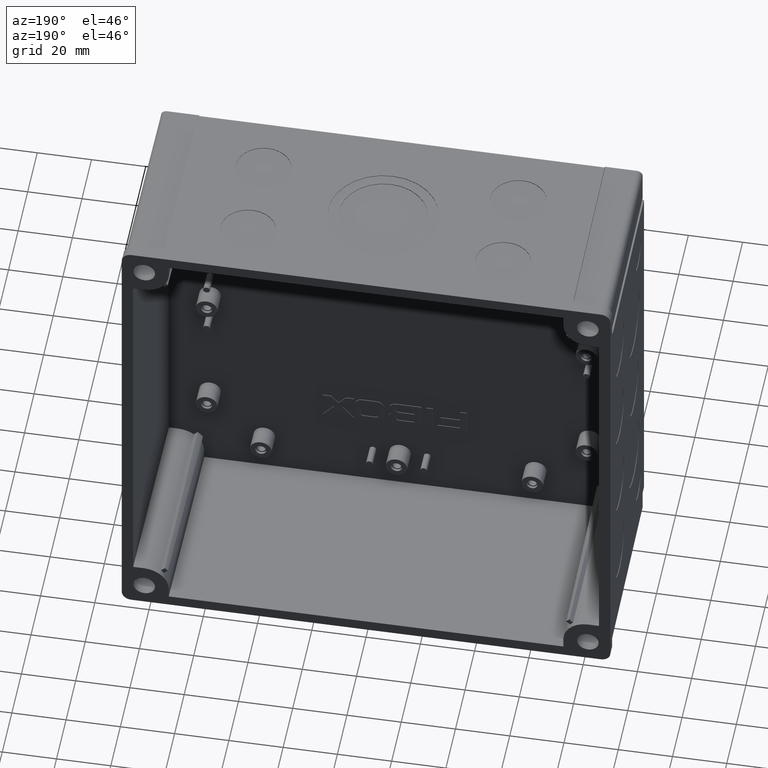
[diagram: clean part render]
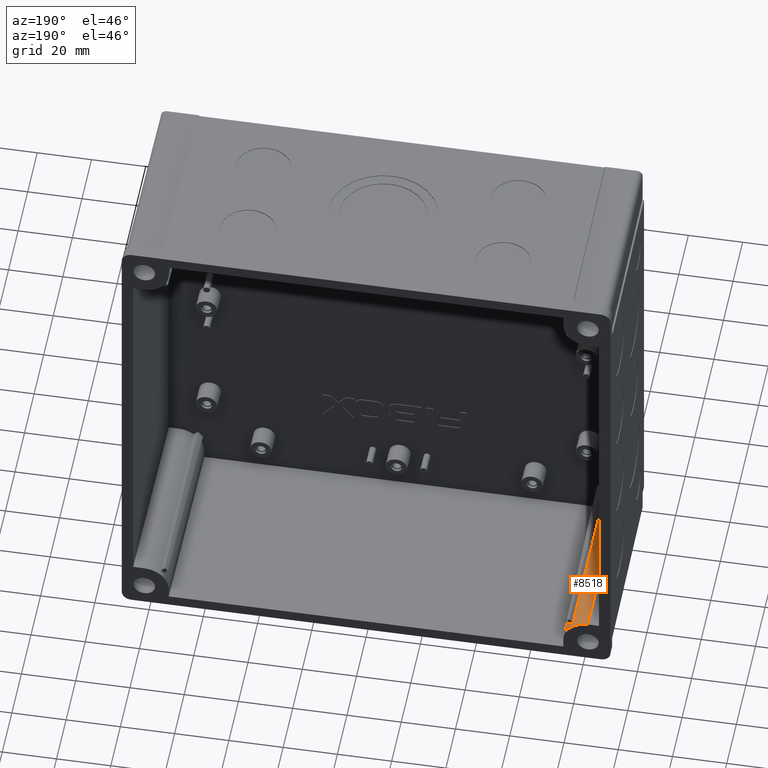
[diagram: same view with one face highlighted and labeled with its STEP entity id]
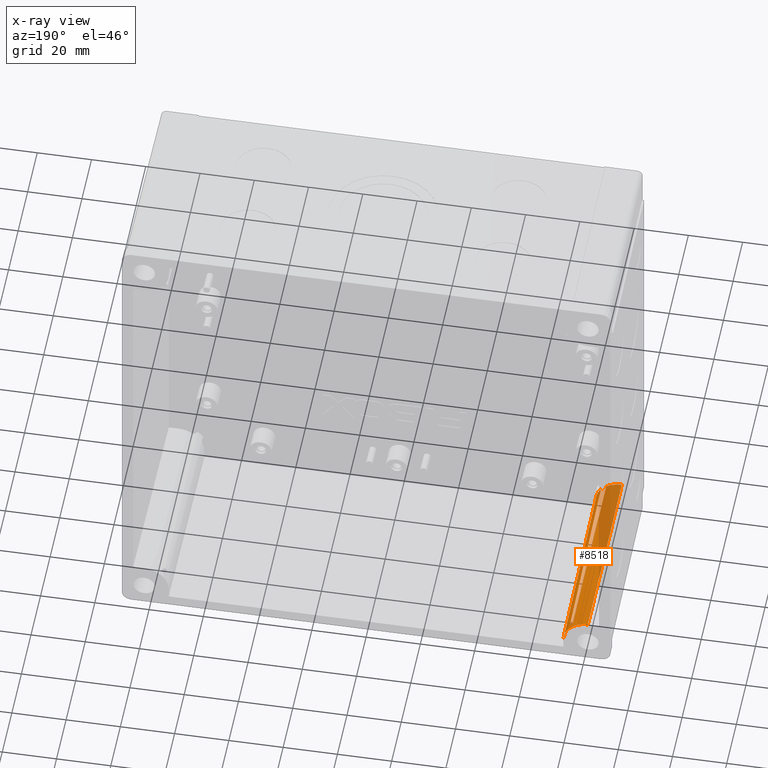
[diagram: x-ray of the same camera — body ghosted, the highlighted face saturated]
A machine part, auxiliary view. The second image highlights one B-rep face of the part: STEP entity #8518.
The next image is the same camera in x-ray: the body ghosted, the highlighted face saturated — about 37% of this face is hidden behind the body in this view.
In plain terms, the highlighted conical surface has half-angle 0.5 deg.
Its self-contained STEP definition (entity closure, byte-faithful):
#35 = DIRECTION ( 'NONE',  ( 0.0000000000000000000, -1.000000000000000000, 0.0000000000000000000 ) ) ;
#309 = EDGE_CURVE ( 'NONE', #4670, #8769, #11768, .T. ) ;
#422 = CARTESIAN_POINT ( 'NONE',  ( -75.96765493337525800, -7.959144256122452400, -74.76273838224349800 ) ) ;
#725 = CIRCLE ( 'NONE', #7247, 9.619607613143884400 ) ;
#773 = ORIENTED_EDGE ( 'NONE', *, *, #309, .F. ) ;
#845 = DIRECTION ( 'NONE',  ( 0.0000000000000000000, 0.0000000000000000000, -1.000000000000000000 ) ) ;
#854 = CARTESIAN_POINT ( 'NONE',  ( -81.75000000000000000, -71.00000000000000000, -72.13039238685610100 ) ) ;
#976 = ORIENTED_EDGE ( 'NONE', *, *, #3024, .T. ) ;
#1297 = CARTESIAN_POINT ( 'NONE',  ( -75.99767133221844500, -53.95912658430225400, -74.22503887899669900 ) ) ;
#1373 = CARTESIAN_POINT ( 'NONE',  ( -75.96452522096467400, -2.000000000000000000, -74.83315437106628600 ) ) ;
#1564 = DIRECTION ( 'NONE',  ( 1.345611199375486900E-017, 0.9999619230641713100, -0.008726535498373953800 ) ) ;
#1680 = FACE_OUTER_BOUND ( 'NONE', #12384, .T. ) ;
#1949 = AXIS2_PLACEMENT_3D ( 'NONE', #3675, #6586, #845 ) ;
#2544 = CARTESIAN_POINT ( 'NONE',  ( -75.96452522096467400, -2.000000000000000000, -74.83315437106628600 ) ) ;
#2636 = VECTOR ( 'NONE', #5050, 1000.000000000000000 ) ;
#3024 = EDGE_CURVE ( 'NONE', #4876, #9386, #5178, .T. ) ;
#3298 = AXIS2_PLACEMENT_3D ( 'NONE', #5649, #35, #8703 ) ;
#3304 = CARTESIAN_POINT ( 'NONE',  ( -74.63649448887861100, -18.64287652477926800, -75.97326597550413400 ) ) ;
#3320 = ORIENTED_EDGE ( 'NONE', *, *, #4198, .F. ) ;
#3345 = CARTESIAN_POINT ( 'NONE',  ( -72.74999999999998600, 0.0000000000000000000, -81.75000000000000000 ) ) ;
#3502 = CARTESIAN_POINT ( 'NONE',  ( -81.74999999999998600, 0.0000000000000000000, -81.75000000000000000 ) ) ;
#3510 = EDGE_CURVE ( 'NONE', #7682, #6808, #8622, .T. ) ;
#3548 = AXIS2_PLACEMENT_3D ( 'NONE', #7744, #6888, #8827 ) ;
#3650 = EDGE_CURVE ( 'NONE', #10695, #6673, #7607, .T. ) ;
#3675 = CARTESIAN_POINT ( 'NONE',  ( -81.74999999999998600, -71.00000000000000000, -81.75000000000000000 ) ) ;
#4008 = DIRECTION ( 'NONE',  ( 0.0000000000000000000, 0.0000000000000000000, -1.000000000000000000 ) ) ;
#4178 = CARTESIAN_POINT ( 'NONE',  ( -81.75000000000000000, 0.0000000000000000000, -72.74999999999998600 ) ) ;
#4198 = EDGE_CURVE ( 'NONE', #8769, #10695, #11797, .T. ) ;
#4241 = CARTESIAN_POINT ( 'NONE',  ( -74.02908415226610800, -71.00000000000000000, -76.01202918244891300 ) ) ;
#4670 = VERTEX_POINT ( 'NONE', #2544 ) ;
#4876 = VERTEX_POINT ( 'NONE', #9825 ) ;
#5050 = DIRECTION ( 'NONE',  ( -0.008726535498373953800, 0.9999619230641713100, -0.0000000000000000000 ) ) ;
#5178 = LINE ( 'NONE', #7854, #2636 ) ;
#5649 = CARTESIAN_POINT ( 'NONE',  ( -81.74999999999998600, 0.0000000000000000000, -81.75000000000000000 ) ) ;
#6076 = CARTESIAN_POINT ( 'NONE',  ( -75.98514694180880700, -36.91827245124490300, -74.42282682756824400 ) ) ;
#6157 = CARTESIAN_POINT ( 'NONE',  ( -75.97105188646591500, -13.91829154019010100, -74.69258959673092600 ) ) ;
#6180 = CARTESIAN_POINT ( 'NONE',  ( -74.44191484099788200, -35.28577673808040800, -75.98408725670593400 ) ) ;
#6266 = CARTESIAN_POINT ( 'NONE',  ( -74.10218513339020800, -64.64289605725134900, -76.00667298126823800 ) ) ;
#6586 = DIRECTION ( 'NONE',  ( -0.0000000000000000000, -1.000000000000000000, 0.0000000000000000000 ) ) ;
#6673 = VERTEX_POINT ( 'NONE', #4178 ) ;
#6712 = AXIS2_PLACEMENT_3D ( 'NONE', #3502, #7518, #12216 ) ;
#6808 = VERTEX_POINT ( 'NONE', #11185 ) ;
#6888 = DIRECTION ( 'NONE',  ( -0.0000000000000000000, -1.000000000000000000, -0.0000000000000000000 ) ) ;
#7161 = EDGE_CURVE ( 'NONE', #6808, #4670, #12413, .T. ) ;
#7226 = ORIENTED_EDGE ( 'NONE', *, *, #11734, .F. ) ;
#7247 = AXIS2_PLACEMENT_3D ( 'NONE', #11728, #8837, #4008 ) ;
#7280 = CONICAL_SURFACE ( 'NONE', #3298, 9.000000000000021300, 0.008726646259971666800 ) ;
#7518 = DIRECTION ( 'NONE',  ( 0.0000000000000000000, -1.000000000000000000, -0.0000000000000000000 ) ) ;
#7607 = LINE ( 'NONE', #12119, #9114 ) ;
#7682 = VERTEX_POINT ( 'NONE', #10896 ) ;
#7706 = ORIENTED_EDGE ( 'NONE', *, *, #3650, .F. ) ;
#7744 = CARTESIAN_POINT ( 'NONE',  ( -81.74999999999998600, -2.000000000000000000, -81.75000000000000000 ) ) ;
#7854 = CARTESIAN_POINT ( 'NONE',  ( -72.74999999999998600, 0.0000000000000000000, -81.75000000000000000 ) ) ;
#8313 = EDGE_CURVE ( 'NONE', #9386, #6673, #9981, .T. ) ;
#8518 = ADVANCED_FACE ( 'NONE', ( #1680 ), #7280, .T. ) ;
#8622 = B_SPLINE_CURVE_WITH_KNOTS ( 'NONE', 3,
 ( #4241, #6266, #10985, #11951, #6180, #3304, #11034 ),
 .UNSPECIFIED., .F., .F.,
 ( 4, 3, 4 ),
 ( 2.000132931470033500E-007, 0.01907277946210354400, 0.06900490211012022500 ),
 .UNSPECIFIED. ) ;
#8703 = DIRECTION ( 'NONE',  ( 0.0000000000000000000, 0.0000000000000000000, -1.000000000000000000 ) ) ;
#8769 = VERTEX_POINT ( 'NONE', #8905 ) ;
#8827 = DIRECTION ( 'NONE',  ( -3.077983700222328700E-015, 0.0000000000000000000, 1.000000000000000000 ) ) ;
#8837 = DIRECTION ( 'NONE',  ( -0.0000000000000000000, -1.000000000000000000, 0.0000000000000000000 ) ) ;
#8905 = CARTESIAN_POINT ( 'NONE',  ( -76.01202918244881300, -71.00000000000000000, -74.02908415226619400 ) ) ;
#9095 = CARTESIAN_POINT ( 'NONE',  ( -76.01202918244881300, -71.00000000000000000, -74.02908415226619400 ) ) ;
#9114 = VECTOR ( 'NONE', #1564, 1000.000000000000000 ) ;
#9386 = VERTEX_POINT ( 'NONE', #3345 ) ;
#9825 = CARTESIAN_POINT ( 'NONE',  ( -72.13039238685610100, -71.00000000000000000, -81.75000000000000000 ) ) ;
#9981 = CIRCLE ( 'NONE', #6712, 9.000000000000021300 ) ;
#10114 = ORIENTED_EDGE ( 'NONE', *, *, #8313, .T. ) ;
#10346 = ORIENTED_EDGE ( 'NONE', *, *, #7161, .F. ) ;
#10695 = VERTEX_POINT ( 'NONE', #854 ) ;
#10896 = CARTESIAN_POINT ( 'NONE',  ( -74.02908415226610800, -71.00000000000000000, -76.01202918244891300 ) ) ;
#10985 = CARTESIAN_POINT ( 'NONE',  ( -74.17554175027153500, -58.28579482740408900, -76.00157244932651700 ) ) ;
#11034 = CARTESIAN_POINT ( 'NONE',  ( -74.83315437106620000, -2.000000000000000000, -75.96452522096475900 ) ) ;
#11185 = CARTESIAN_POINT ( 'NONE',  ( -74.83315437106620000, -2.000000000000000000, -75.96452522096475900 ) ) ;
#11365 = ORIENTED_EDGE ( 'NONE', *, *, #3510, .F. ) ;
#11728 = CARTESIAN_POINT ( 'NONE',  ( -81.74999999999998600, -71.00000000000000000, -81.75000000000000000 ) ) ;
#11734 = EDGE_CURVE ( 'NONE', #4876, #7682, #725, .T. ) ;
#11768 = B_SPLINE_CURVE_WITH_KNOTS ( 'NONE', 3,
 ( #1373, #422, #6157, #11844, #6076, #1297, #9095 ),
 .UNSPECIFIED., .F., .F.,
 ( 4, 3, 4 ),
 ( 2.000139895770823500E-007, 0.01787888330574040000, 0.06900490214717065800 ),
 .UNSPECIFIED. ) ;
#11797 = CIRCLE ( 'NONE', #1949, 9.619607613143884400 ) ;
#11844 = CARTESIAN_POINT ( 'NONE',  ( -75.97470382647695400, -19.87744164630781500, -74.62269576330997700 ) ) ;
#11951 = CARTESIAN_POINT ( 'NONE',  ( -74.24916603707845300, -51.92869650431466500, -75.99673962318458100 ) ) ;
#12119 = CARTESIAN_POINT ( 'NONE',  ( -81.75000000000000000, -6.055019831808904700E-017, -72.74999999999998600 ) ) ;
#12216 = DIRECTION ( 'NONE',  ( 0.0000000000000000000, 0.0000000000000000000, -1.000000000000000000 ) ) ;
#12384 = EDGE_LOOP ( 'NONE', ( #3320, #773, #10346, #11365, #7226, #976, #10114, #7706 ) ) ;
#12413 = CIRCLE ( 'NONE', #3548, 9.017453735581535000 ) ;